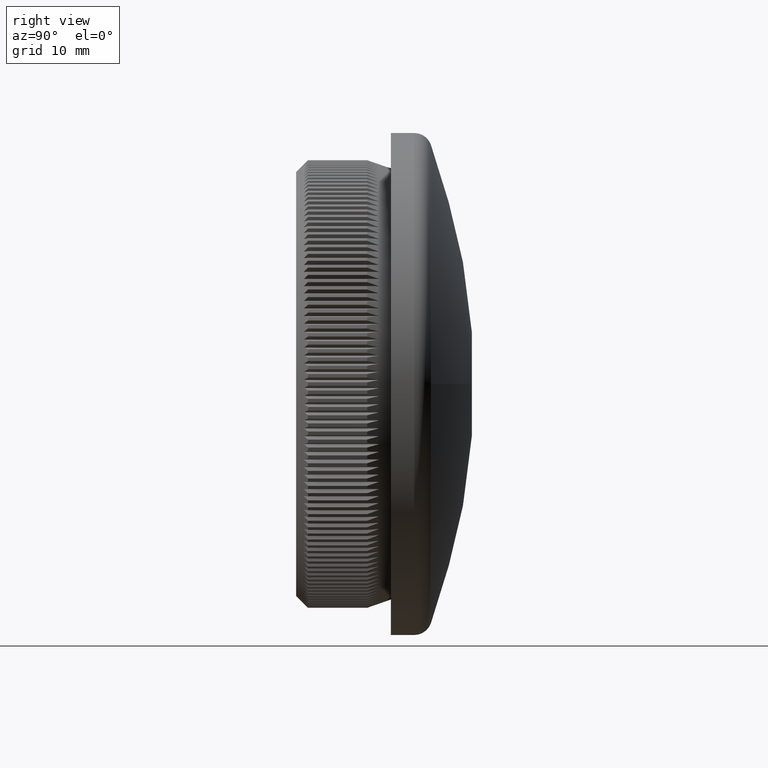
[diagram: clean part render]
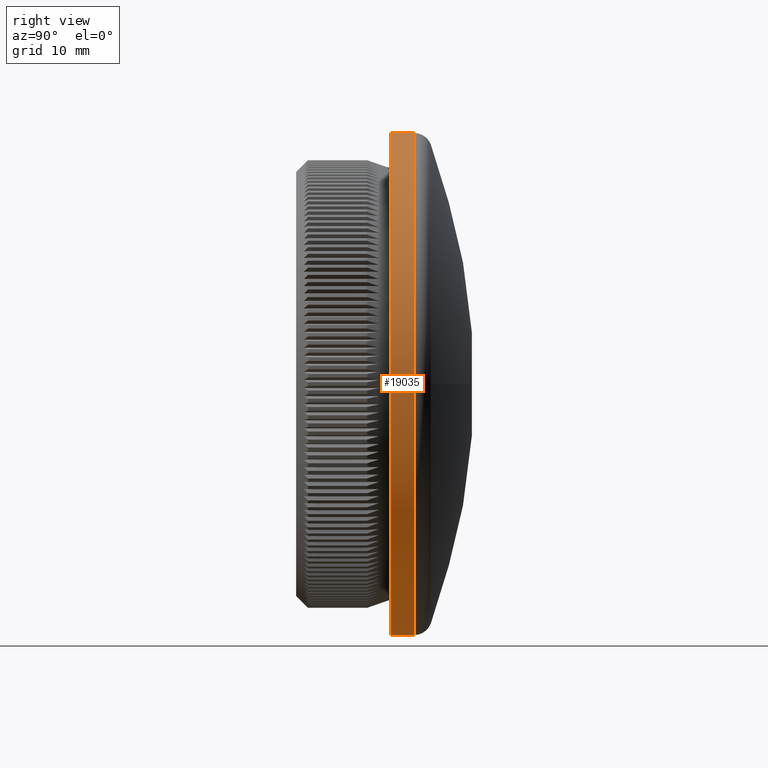
[diagram: same view with one face highlighted and labeled with its STEP entity id]
A machine part, right view. The second image highlights one B-rep face of the part: STEP entity #19035.
In plain terms, the highlighted cylindrical surface (partial cylindrical patch) has radius 21.2 mm, axis along (-0, -1, -0).
Its self-contained STEP definition (entity closure, byte-faithful):
#337 = CARTESIAN_POINT ( 'NONE',  ( 0.0000000000000000000, 0.0000000000000000000, 0.0000000000000000000 ) ) ;
#415 = AXIS2_PLACEMENT_3D ( 'NONE', #13854, #6808, #12004 ) ;
#2950 = ORIENTED_EDGE ( 'NONE', *, *, #18833, .F. ) ;
#3355 = EDGE_CURVE ( 'NONE', #30511, #5070, #9451, .T. ) ;
#3558 = EDGE_CURVE ( 'NONE', #30511, #15731, #26502, .T. ) ;
#5070 = VERTEX_POINT ( 'NONE', #13571 ) ;
#5542 = AXIS2_PLACEMENT_3D ( 'NONE', #337, #16873, #24240 ) ;
#6808 = DIRECTION ( 'NONE',  ( -0.0000000000000000000, -1.000000000000000000, -0.0000000000000000000 ) ) ;
#7142 = DIRECTION ( 'NONE',  ( -0.0000000000000000000, -1.000000000000000000, -0.0000000000000000000 ) ) ;
#7466 = CYLINDRICAL_SURFACE ( 'NONE', #5542, 21.20000000000000300 ) ;
#7723 = VERTEX_POINT ( 'NONE', #22642 ) ;
#8324 = VECTOR ( 'NONE', #29740, 1000.000000000000000 ) ;
#9285 = CARTESIAN_POINT ( 'NONE',  ( 0.0000000000000000000, 9.966330070852492900, -21.20000000000000300 ) ) ;
#9451 = CIRCLE ( 'NONE', #415, 21.20000000000000300 ) ;
#10213 = EDGE_CURVE ( 'NONE', #5070, #7723, #27414, .T. ) ;
#12004 = DIRECTION ( 'NONE',  ( 0.0000000000000000000, 0.0000000000000000000, -1.000000000000000000 ) ) ;
#13571 = CARTESIAN_POINT ( 'NONE',  ( 2.596251214192389200E-015, 9.966330070852492900, 21.20000000000000300 ) ) ;
#13854 = CARTESIAN_POINT ( 'NONE',  ( 0.0000000000000000000, 9.966330070852492900, 0.0000000000000000000 ) ) ;
#14583 = CARTESIAN_POINT ( 'NONE',  ( 0.0000000000000000000, 8.000000000000000000, 0.0000000000000000000 ) ) ;
#15731 = VERTEX_POINT ( 'NONE', #17757 ) ;
#16649 = AXIS2_PLACEMENT_3D ( 'NONE', #14583, #21947, #24322 ) ;
#16873 = DIRECTION ( 'NONE',  ( -0.0000000000000000000, -1.000000000000000000, -0.0000000000000000000 ) ) ;
#17757 = CARTESIAN_POINT ( 'NONE',  ( 0.0000000000000000000, 8.000000000000000000, -21.19999999999999900 ) ) ;
#18833 = EDGE_CURVE ( 'NONE', #15731, #7723, #20483, .T. ) ;
#19035 = ADVANCED_FACE ( 'NONE', ( #30488 ), #7466, .T. ) ;
#20483 = CIRCLE ( 'NONE', #16649, 21.19999999999999900 ) ;
#21947 = DIRECTION ( 'NONE',  ( -0.0000000000000000000, -1.000000000000000000, -0.0000000000000000000 ) ) ;
#22642 = CARTESIAN_POINT ( 'NONE',  ( 2.596251214192388800E-015, 8.000000000000000000, 21.19999999999999900 ) ) ;
#23591 = ORIENTED_EDGE ( 'NONE', *, *, #3355, .T. ) ;
#23903 = EDGE_LOOP ( 'NONE', ( #23591, #26193, #2950, #29144 ) ) ;
#24240 = DIRECTION ( 'NONE',  ( 0.0000000000000000000, 0.0000000000000000000, -1.000000000000000000 ) ) ;
#24322 = DIRECTION ( 'NONE',  ( 0.0000000000000000000, 0.0000000000000000000, -1.000000000000000000 ) ) ;
#24952 = CARTESIAN_POINT ( 'NONE',  ( 0.0000000000000000000, 0.0000000000000000000, -21.20000000000000300 ) ) ;
#25907 = CARTESIAN_POINT ( 'NONE',  ( 2.596251214192389200E-015, 0.0000000000000000000, 21.20000000000000300 ) ) ;
#26193 = ORIENTED_EDGE ( 'NONE', *, *, #10213, .T. ) ;
#26502 = LINE ( 'NONE', #24952, #8324 ) ;
#27414 = LINE ( 'NONE', #25907, #28929 ) ;
#28929 = VECTOR ( 'NONE', #7142, 1000.000000000000000 ) ;
#29144 = ORIENTED_EDGE ( 'NONE', *, *, #3558, .F. ) ;
#29740 = DIRECTION ( 'NONE',  ( -0.0000000000000000000, -1.000000000000000000, -0.0000000000000000000 ) ) ;
#30488 = FACE_OUTER_BOUND ( 'NONE', #23903, .T. ) ;
#30511 = VERTEX_POINT ( 'NONE', #9285 ) ;